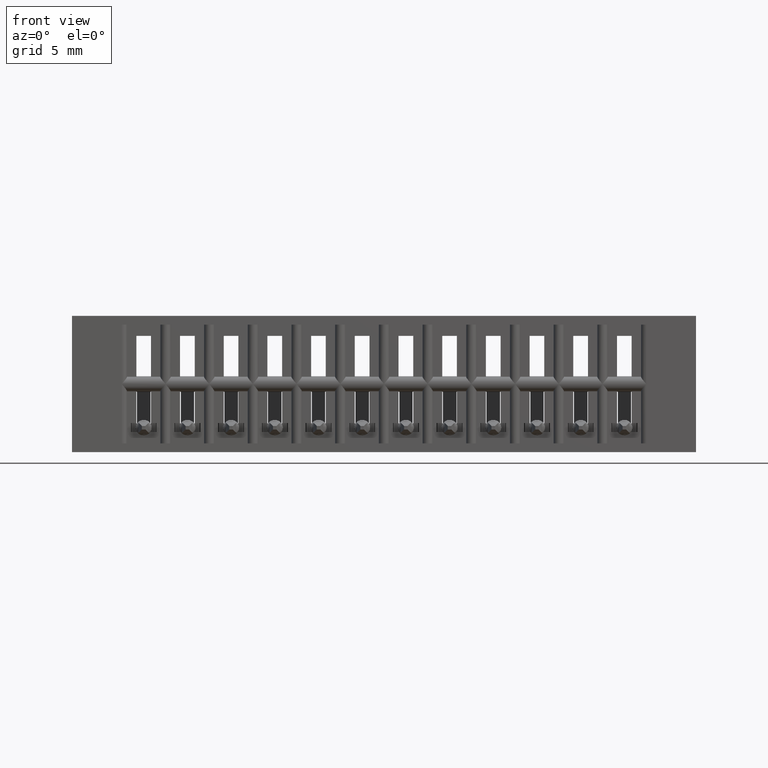
[diagram: clean part render]
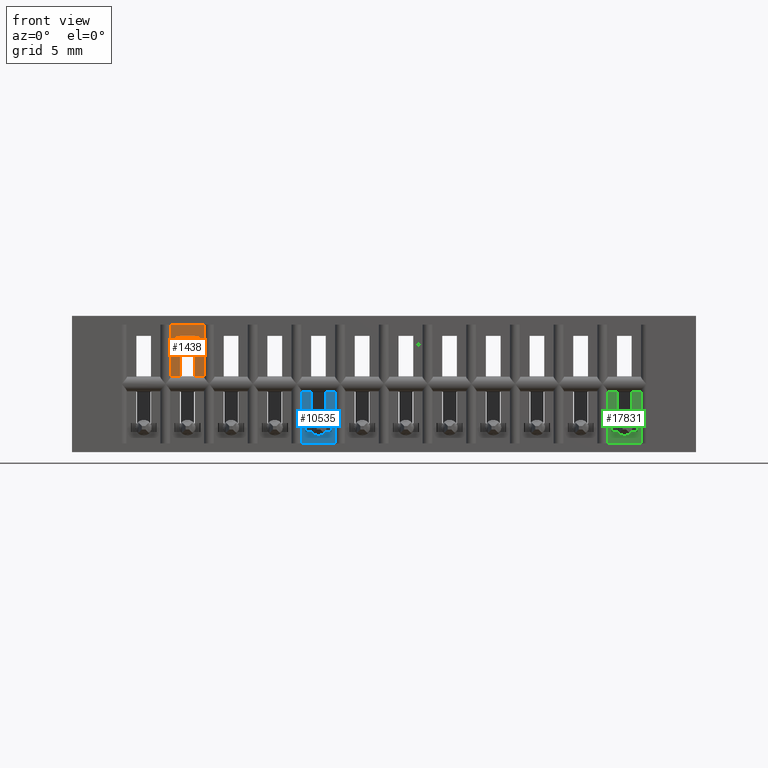
[diagram: same view with three faces highlighted in distinct colors, each labeled with its STEP entity id]
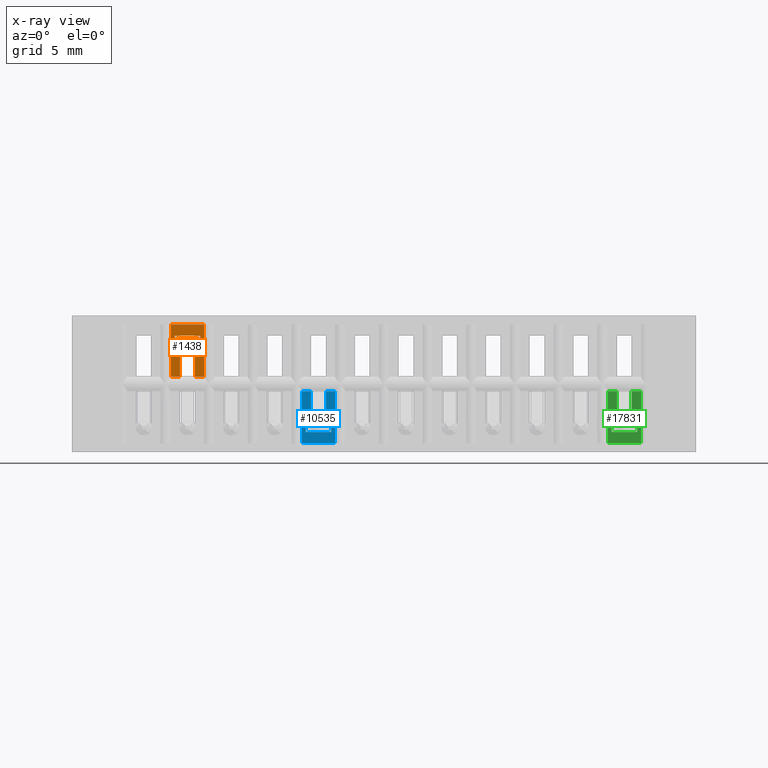
[diagram: x-ray of the same camera — body ghosted, the three highlighted faces saturated]
A machine part, front view with three faces highlighted in distinct colors.
The next image is the same camera in x-ray (body ghosted, the three faces saturated) — at least one of them is partly hidden behind the body in this view.
Their STEP definitions:

[orange] entity #1438 — the highlighted planar face has unit normal (0, 1, 0).
#126 = CARTESIAN_POINT ( 'NONE',  ( 0.3669999999999997153, 0.01499999999999979475, -1.163771384098140660E-16 ) ) ;
#173 = VECTOR ( 'NONE', #12512, 39.37007874015748143 ) ;
#532 = FACE_OUTER_BOUND ( 'NONE', #18680, .T. ) ;
#624 = EDGE_CURVE ( 'NONE', #2834, #18183, #15711, .T. ) ;
#926 = CARTESIAN_POINT ( 'NONE',  ( 19685.03937007874265, 0.01499999999999987801, -0.1741433463899272616 ) ) ;
#972 = EDGE_CURVE ( 'NONE', #15803, #22054, #4694, .T. ) ;
#1096 = VECTOR ( 'NONE', #2994, 39.37007874015748143 ) ;
#1152 = VERTEX_POINT ( 'NONE', #9749 ) ;
#1438 = ADVANCED_FACE ( 'NONE', ( #532 ), #2474, .F. ) ;
#1648 = CARTESIAN_POINT ( 'NONE',  ( -19685.03937007874265, 0.01499999999999987801, -0.1741433463808433890 ) ) ;
#1768 = VERTEX_POINT ( 'NONE', #10396 ) ;
#1852 = DIRECTION ( 'NONE',  ( 1.000000000000000000, -0.0000000000000000000, -2.307304048702925122E-16 ) ) ;
#2049 = VECTOR ( 'NONE', #10351, 39.37007874015748143 ) ;
#2474 = PLANE ( 'NONE',  #8135 ) ;
#2481 = CARTESIAN_POINT ( 'NONE',  ( 0.3669999999999996043, 0.01499999999999982250, -0.08249999999999996225 ) ) ;
#2517 = EDGE_CURVE ( 'NONE', #20039, #7253, #12279, .T. ) ;
#2817 = EDGE_CURVE ( 'NONE', #19077, #6849, #8910, .T. ) ;
#2834 = VERTEX_POINT ( 'NONE', #6983 ) ;
#2975 = DIRECTION ( 'NONE',  ( 1.000000000000000000, 0.0000000000000000000, -2.307304048702925122E-16 ) ) ;
#2994 = DIRECTION ( 'NONE',  ( -0.0000000000000000000, -0.0000000000000000000, 1.000000000000000000 ) ) ;
#3054 = VECTOR ( 'NONE', #1852, 39.37007874015748143 ) ;
#3530 = EDGE_CURVE ( 'NONE', #6849, #2834, #13178, .T. ) ;
#3654 = DIRECTION ( 'NONE',  ( 2.385081683068867604E-16, 0.0000000000000000000, 1.000000000000000000 ) ) ;
#3930 = DIRECTION ( 'NONE',  ( -0.0000000000000000000, -0.0000000000000000000, 1.000000000000000000 ) ) ;
#4058 = DIRECTION ( 'NONE',  ( 0.0000000000000000000, -4.596859604723521792E-16, 1.000000000000000000 ) ) ;
#4694 = LINE ( 'NONE', #11626, #1096 ) ;
#4941 = ORIENTED_EDGE ( 'NONE', *, *, #624, .T. ) ;
#5269 = VECTOR ( 'NONE', #16732, 39.37007874015748143 ) ;
#5344 = VECTOR ( 'NONE', #21813, 39.37007874015748143 ) ;
#5648 = DIRECTION ( 'NONE',  ( 1.060635277729750645E-31, 1.000000000000000000, 4.596859604723521792E-16 ) ) ;
#6849 = VERTEX_POINT ( 'NONE', #15428 ) ;
#6983 = CARTESIAN_POINT ( 'NONE',  ( 0.3774999999999997247, 0.01499999999999997516, -0.1741433463853853947 ) ) ;
#7072 = EDGE_CURVE ( 'NONE', #1768, #1152, #19569, .T. ) ;
#7253 = VERTEX_POINT ( 'NONE', #8236 ) ;
#7994 = ORIENTED_EDGE ( 'NONE', *, *, #7072, .F. ) ;
#8135 = AXIS2_PLACEMENT_3D ( 'NONE', #15859, #5648, #4058 ) ;
#8158 = VERTEX_POINT ( 'NONE', #22225 ) ;
#8236 = CARTESIAN_POINT ( 'NONE',  ( 0.3089999999999997193, 0.01499999999999997169, -0.08249999999999997613 ) ) ;
#8580 = CARTESIAN_POINT ( 'NONE',  ( 0.3774999999999996692, 0.01499999999999997169, -0.02500000000000000486 ) ) ;
#8735 = CARTESIAN_POINT ( 'NONE',  ( 0.3089999999999997193, 0.01499999999999997169, -4.404883600063556642E-17 ) ) ;
#8876 = VERTEX_POINT ( 'NONE', #2481 ) ;
#8910 = LINE ( 'NONE', #21860, #19243 ) ;
#8974 = LINE ( 'NONE', #126, #13234 ) ;
#8990 = CARTESIAN_POINT ( 'NONE',  ( 0.3089999999999997193, 0.01499999999999983291, -0.08249999999999996225 ) ) ;
#9478 = VECTOR ( 'NONE', #3930, 39.37007874015748143 ) ;
#9550 = EDGE_CURVE ( 'NONE', #8876, #8158, #8974, .T. ) ;
#9749 = CARTESIAN_POINT ( 'NONE',  ( 0.2929999999999995941, 0.01499999999999982250, -0.08249999999999996225 ) ) ;
#9891 = CARTESIAN_POINT ( 'NONE',  ( 0.3089999999995447499, 0.01499999999999997169, -0.1741433463853853669 ) ) ;
#10025 = CARTESIAN_POINT ( 'NONE',  ( 0.3089999999999997193, 0.01499999999999999424, -0.02500000000000003608 ) ) ;
#10051 = LINE ( 'NONE', #1648, #10085 ) ;
#10085 = VECTOR ( 'NONE', #18779, 39.37007874015748143 ) ;
#10201 = VECTOR ( 'NONE', #3654, 39.37007874015748143 ) ;
#10339 = DIRECTION ( 'NONE',  ( 1.365923996832131609E-15, -4.596859604723521792E-16, 1.000000000000000000 ) ) ;
#10348 = ORIENTED_EDGE ( 'NONE', *, *, #17260, .F. ) ;
#10351 = DIRECTION ( 'NONE',  ( -1.000000000000000000, -6.287160262869416356E-33, 2.444074818391192251E-16 ) ) ;
#10396 = CARTESIAN_POINT ( 'NONE',  ( 0.2929999999999995941, 0.01499999999999982250, -0.05749999999999997474 ) ) ;
#11620 = ORIENTED_EDGE ( 'NONE', *, *, #15625, .F. ) ;
#11626 = CARTESIAN_POINT ( 'NONE',  ( 0.2824999999999996958, 0.01499999999999997169, -0.3900000000000000133 ) ) ;
#11637 = CARTESIAN_POINT ( 'NONE',  ( 0.3089999999999997193, 0.01499999999999991444, -0.05750000000000015515 ) ) ;
#12279 = LINE ( 'NONE', #8735, #10201 ) ;
#12319 = ORIENTED_EDGE ( 'NONE', *, *, #2517, .T. ) ;
#12338 = ORIENTED_EDGE ( 'NONE', *, *, #3530, .T. ) ;
#12421 = CARTESIAN_POINT ( 'NONE',  ( 0.2824999999999996958, 0.01499999999999997169, -0.1741433463853853669 ) ) ;
#12512 = DIRECTION ( 'NONE',  ( 1.000000000000000000, -6.287160262869394461E-33, -2.170533279014657500E-16 ) ) ;
#12761 = VECTOR ( 'NONE', #2975, 39.37007874015748143 ) ;
#13178 = LINE ( 'NONE', #926, #12761 ) ;
#13234 = VECTOR ( 'NONE', #10339, 39.37007874015748143 ) ;
#13344 = CARTESIAN_POINT ( 'NONE',  ( 0.2929999999999995941, 0.01499999999999979475, -5.162495758701524272E-17 ) ) ;
#13911 = ORIENTED_EDGE ( 'NONE', *, *, #2817, .T. ) ;
#14400 = CARTESIAN_POINT ( 'NONE',  ( 0.3509999999999995901, 0.01499999999999982250, -0.08249999999999996225 ) ) ;
#14553 = EDGE_CURVE ( 'NONE', #1768, #8158, #20129, .T. ) ;
#15120 = LINE ( 'NONE', #18625, #2049 ) ;
#15428 = CARTESIAN_POINT ( 'NONE',  ( 0.3509999999999995901, 0.01499999999999997169, -0.1741433463853853947 ) ) ;
#15466 = LINE ( 'NONE', #10025, #3054 ) ;
#15625 = EDGE_CURVE ( 'NONE', #20039, #15803, #10051, .T. ) ;
#15711 = LINE ( 'NONE', #17409, #9478 ) ;
#15741 = ORIENTED_EDGE ( 'NONE', *, *, #21091, .T. ) ;
#15788 = ORIENTED_EDGE ( 'NONE', *, *, #972, .F. ) ;
#15803 = VERTEX_POINT ( 'NONE', #12421 ) ;
#15859 = CARTESIAN_POINT ( 'NONE',  ( 0.3089999999999997193, 0.01499999999999979475, -3.715354659355037839E-17 ) ) ;
#16661 = CARTESIAN_POINT ( 'NONE',  ( 0.2824999999999996958, 0.01499999999999997169, -0.02500000000000000486 ) ) ;
#16732 = DIRECTION ( 'NONE',  ( 9.044631870915464862E-16, 4.596859604723521792E-16, -1.000000000000000000 ) ) ;
#17260 = EDGE_CURVE ( 'NONE', #22054, #18183, #15466, .T. ) ;
#17309 = DIRECTION ( 'NONE',  ( -2.385081683068867604E-16, 0.0000000000000000000, -1.000000000000000000 ) ) ;
#17409 = CARTESIAN_POINT ( 'NONE',  ( 0.3774999999999996692, 0.01499999999999997169, -0.3900000000000000133 ) ) ;
#17481 = EDGE_CURVE ( 'NONE', #1152, #7253, #17485, .T. ) ;
#17485 = LINE ( 'NONE', #8990, #173 ) ;
#17565 = ORIENTED_EDGE ( 'NONE', *, *, #17481, .F. ) ;
#18183 = VERTEX_POINT ( 'NONE', #8580 ) ;
#18625 = CARTESIAN_POINT ( 'NONE',  ( 0.3089999999999997193, 0.01499999999999983291, -0.08249999999999993450 ) ) ;
#18680 = EDGE_LOOP ( 'NONE', ( #15788, #11620, #12319, #17565, #7994, #21985, #18683, #15741, #13911, #12338, #4941, #10348 ) ) ;
#18683 = ORIENTED_EDGE ( 'NONE', *, *, #9550, .F. ) ;
#18779 = DIRECTION ( 'NONE',  ( -1.000000000000000000, -0.0000000000000000000, 2.307304048702924629E-16 ) ) ;
#19077 = VERTEX_POINT ( 'NONE', #14400 ) ;
#19243 = VECTOR ( 'NONE', #17309, 39.37007874015748143 ) ;
#19569 = LINE ( 'NONE', #13344, #5269 ) ;
#20039 = VERTEX_POINT ( 'NONE', #9891 ) ;
#20129 = LINE ( 'NONE', #11637, #5344 ) ;
#21091 = EDGE_CURVE ( 'NONE', #8876, #19077, #15120, .T. ) ;
#21813 = DIRECTION ( 'NONE',  ( 1.000000000000000000, -0.0000000000000000000, -2.307304048702925122E-16 ) ) ;
#21860 = CARTESIAN_POINT ( 'NONE',  ( 0.3509999999999997011, 0.01499999999999997169, -5.373951300518784932E-17 ) ) ;
#21985 = ORIENTED_EDGE ( 'NONE', *, *, #14553, .T. ) ;
#22054 = VERTEX_POINT ( 'NONE', #16661 ) ;
#22225 = CARTESIAN_POINT ( 'NONE',  ( 0.3669999999999996598, 0.01499999999999982250, -0.05749999999999998168 ) ) ;

[blue] entity #10535 — the highlighted planar face has unit normal (0, 1, 0).
#206 = DIRECTION ( 'NONE',  ( 1.000000000000000000, 6.287160262869416356E-33, -2.444074818391192251E-16 ) ) ;
#285 = CARTESIAN_POINT ( 'NONE',  ( 0.7419999999999996598, 0.01499999999999994220, -0.3075000000000000511 ) ) ;
#424 = VERTEX_POINT ( 'NONE', #8119 ) ;
#568 = LINE ( 'NONE', #4316, #4950 ) ;
#875 = CARTESIAN_POINT ( 'NONE',  ( 0.6839999999994050839, 0.01499999999999997169, -0.2158566536146137582 ) ) ;
#966 = ORIENTED_EDGE ( 'NONE', *, *, #15163, .T. ) ;
#1073 = DIRECTION ( 'NONE',  ( -0.0000000000000000000, -0.0000000000000000000, 1.000000000000000000 ) ) ;
#1211 = ORIENTED_EDGE ( 'NONE', *, *, #7150, .T. ) ;
#1307 = EDGE_CURVE ( 'NONE', #8952, #19718, #8813, .T. ) ;
#1355 = ORIENTED_EDGE ( 'NONE', *, *, #17317, .T. ) ;
#1715 = VECTOR ( 'NONE', #11283, 39.37007874015748143 ) ;
#2028 = CARTESIAN_POINT ( 'NONE',  ( 0.7524999999999997247, 0.01499999999999997169, -0.3900000000000000133 ) ) ;
#2201 = VERTEX_POINT ( 'NONE', #5583 ) ;
#2793 = LINE ( 'NONE', #21600, #20860 ) ;
#2820 = CARTESIAN_POINT ( 'NONE',  ( 0.6839999999999997193, 0.01499999999999997169, -4.404883600063556642E-17 ) ) ;
#3190 = VERTEX_POINT ( 'NONE', #13660 ) ;
#3320 = DIRECTION ( 'NONE',  ( -2.385081683068867604E-16, 0.0000000000000000000, -1.000000000000000000 ) ) ;
#3951 = VECTOR ( 'NONE', #13163, 39.37007874015748143 ) ;
#4316 = CARTESIAN_POINT ( 'NONE',  ( -19685.03937007874265, 0.01499999999999989536, -0.2158566536100716138 ) ) ;
#4705 = PLANE ( 'NONE',  #9986 ) ;
#4796 = LINE ( 'NONE', #17276, #19341 ) ;
#4950 = VECTOR ( 'NONE', #17901, 39.37007874015748143 ) ;
#5417 = EDGE_CURVE ( 'NONE', #21425, #424, #15752, .T. ) ;
#5515 = CARTESIAN_POINT ( 'NONE',  ( 0.6839999999999997193, 0.01499999999999993526, -0.3075000000000000511 ) ) ;
#5583 = CARTESIAN_POINT ( 'NONE',  ( 0.6574999999999997513, 0.01499999999999997169, -0.2158566536146137305 ) ) ;
#5865 = LINE ( 'NONE', #2820, #14054 ) ;
#6013 = ORIENTED_EDGE ( 'NONE', *, *, #15367, .T. ) ;
#6347 = CARTESIAN_POINT ( 'NONE',  ( 0.6679999999999995941, 0.01499999999999994220, -0.3075000000000000511 ) ) ;
#6428 = DIRECTION ( 'NONE',  ( -1.000000000000000000, -0.0000000000000000000, 2.307304048702924629E-16 ) ) ;
#6691 = CARTESIAN_POINT ( 'NONE',  ( 0.6839999999999996083, 0.01499999999999994914, -0.3325000000000000178 ) ) ;
#7150 = EDGE_CURVE ( 'NONE', #14033, #8341, #9812, .T. ) ;
#7763 = DIRECTION ( 'NONE',  ( 0.0000000000000000000, -4.596859604723521792E-16, 1.000000000000000000 ) ) ;
#7886 = ORIENTED_EDGE ( 'NONE', *, *, #8447, .F. ) ;
#8119 = CARTESIAN_POINT ( 'NONE',  ( 0.7419999999999996598, 0.01499999999999994914, -0.3325000000000000178 ) ) ;
#8341 = VERTEX_POINT ( 'NONE', #18833 ) ;
#8447 = EDGE_CURVE ( 'NONE', #2201, #10194, #568, .T. ) ;
#8704 = VERTEX_POINT ( 'NONE', #6347 ) ;
#8813 = LINE ( 'NONE', #20502, #9316 ) ;
#8826 = DIRECTION ( 'NONE',  ( 1.000000000000000000, -0.0000000000000000000, -2.307304048702925122E-16 ) ) ;
#8952 = VERTEX_POINT ( 'NONE', #16188 ) ;
#9316 = VECTOR ( 'NONE', #206, 39.37007874015748143 ) ;
#9812 = LINE ( 'NONE', #19793, #11811 ) ;
#9986 = AXIS2_PLACEMENT_3D ( 'NONE', #21713, #18075, #7763 ) ;
#10194 = VERTEX_POINT ( 'NONE', #875 ) ;
#10317 = VERTEX_POINT ( 'NONE', #12107 ) ;
#10535 = ADVANCED_FACE ( 'NONE', ( #13213 ), #4705, .F. ) ;
#10580 = EDGE_CURVE ( 'NONE', #3190, #2201, #2793, .T. ) ;
#10685 = CARTESIAN_POINT ( 'NONE',  ( 0.7259999999999997566, 0.01499999999999997169, -5.373951300518784932E-17 ) ) ;
#10772 = LINE ( 'NONE', #2028, #18752 ) ;
#11283 = DIRECTION ( 'NONE',  ( 1.000000000000000000, -0.0000000000000000000, -2.307304048702925122E-16 ) ) ;
#11726 = DIRECTION ( 'NONE',  ( -0.0000000000000000000, 4.596859604723521792E-16, -1.000000000000000000 ) ) ;
#11786 = ORIENTED_EDGE ( 'NONE', *, *, #1307, .T. ) ;
#11811 = VECTOR ( 'NONE', #6428, 39.37007874015748143 ) ;
#12012 = EDGE_LOOP ( 'NONE', ( #18825, #1211, #966, #11786, #1355, #20194, #6013, #16045, #20991, #7886, #21166, #14483 ) ) ;
#12107 = CARTESIAN_POINT ( 'NONE',  ( 0.7524999999999997247, 0.01499999999999997169, -0.3649999999999999911 ) ) ;
#12448 = DIRECTION ( 'NONE',  ( -1.000000000000000000, 6.287160262869394461E-33, 2.170533279014657500E-16 ) ) ;
#12773 = LINE ( 'NONE', #5515, #20851 ) ;
#12806 = EDGE_CURVE ( 'NONE', #10317, #14033, #10772, .T. ) ;
#12911 = EDGE_CURVE ( 'NONE', #18050, #10194, #5865, .T. ) ;
#13023 = DIRECTION ( 'NONE',  ( 2.385081683068867604E-16, 0.0000000000000000000, 1.000000000000000000 ) ) ;
#13163 = DIRECTION ( 'NONE',  ( 4.614608097405849258E-16, -4.596859604723521792E-16, 1.000000000000000000 ) ) ;
#13213 = FACE_OUTER_BOUND ( 'NONE', #12012, .T. ) ;
#13660 = CARTESIAN_POINT ( 'NONE',  ( 0.6574999999999997513, 0.01499999999999997169, -0.3649999999999999911 ) ) ;
#14033 = VERTEX_POINT ( 'NONE', #14593 ) ;
#14054 = VECTOR ( 'NONE', #13023, 39.37007874015748143 ) ;
#14483 = ORIENTED_EDGE ( 'NONE', *, *, #22210, .T. ) ;
#14593 = CARTESIAN_POINT ( 'NONE',  ( 0.7524999999999997247, 0.01499999999999997169, -0.2158566536146137582 ) ) ;
#14968 = LINE ( 'NONE', #19956, #3951 ) ;
#15163 = EDGE_CURVE ( 'NONE', #8341, #8952, #18843, .T. ) ;
#15367 = EDGE_CURVE ( 'NONE', #21425, #8704, #14968, .T. ) ;
#15752 = LINE ( 'NONE', #6691, #18235 ) ;
#15863 = DIRECTION ( 'NONE',  ( -0.0000000000000000000, -0.0000000000000000000, 1.000000000000000000 ) ) ;
#16045 = ORIENTED_EDGE ( 'NONE', *, *, #19275, .F. ) ;
#16188 = CARTESIAN_POINT ( 'NONE',  ( 0.7259999999999995346, 0.01499999999999994220, -0.3075000000000000511 ) ) ;
#17276 = CARTESIAN_POINT ( 'NONE',  ( 0.7419999999999996598, 0.01499999999999979475, -3.715354659355037839E-17 ) ) ;
#17317 = EDGE_CURVE ( 'NONE', #19718, #424, #4796, .T. ) ;
#17901 = DIRECTION ( 'NONE',  ( 1.000000000000000000, 0.0000000000000000000, -2.307304048702924629E-16 ) ) ;
#18038 = CARTESIAN_POINT ( 'NONE',  ( 0.6679999999999995941, 0.01499999999999993873, -0.3324999999999999623 ) ) ;
#18050 = VERTEX_POINT ( 'NONE', #20359 ) ;
#18075 = DIRECTION ( 'NONE',  ( 1.060635277729750645E-31, 1.000000000000000000, 4.596859604723521792E-16 ) ) ;
#18172 = CARTESIAN_POINT ( 'NONE',  ( 0.6839999999999996083, 0.01499999999999996302, -0.3649999999999999911 ) ) ;
#18235 = VECTOR ( 'NONE', #8826, 39.37007874015748143 ) ;
#18752 = VECTOR ( 'NONE', #15863, 39.37007874015748143 ) ;
#18825 = ORIENTED_EDGE ( 'NONE', *, *, #12806, .T. ) ;
#18833 = CARTESIAN_POINT ( 'NONE',  ( 0.7259999999999997566, 0.01499999999999997169, -0.2158566536146137582 ) ) ;
#18843 = LINE ( 'NONE', #10685, #19836 ) ;
#19275 = EDGE_CURVE ( 'NONE', #18050, #8704, #12773, .T. ) ;
#19341 = VECTOR ( 'NONE', #11726, 39.37007874015748143 ) ;
#19718 = VERTEX_POINT ( 'NONE', #285 ) ;
#19793 = CARTESIAN_POINT ( 'NONE',  ( 19685.03937007874265, 0.01499999999999989536, -0.2158566536191554863 ) ) ;
#19836 = VECTOR ( 'NONE', #3320, 39.37007874015748143 ) ;
#19956 = CARTESIAN_POINT ( 'NONE',  ( 0.6679999999999997051, 0.01499999999999979475, -2.977017363770099769E-17 ) ) ;
#20194 = ORIENTED_EDGE ( 'NONE', *, *, #5417, .F. ) ;
#20231 = LINE ( 'NONE', #18172, #1715 ) ;
#20359 = CARTESIAN_POINT ( 'NONE',  ( 0.6839999999999996083, 0.01499999999999994220, -0.3075000000000000511 ) ) ;
#20502 = CARTESIAN_POINT ( 'NONE',  ( 0.6839999999999996083, 0.01499999999999993526, -0.3074999999999999956 ) ) ;
#20851 = VECTOR ( 'NONE', #12448, 39.37007874015748143 ) ;
#20860 = VECTOR ( 'NONE', #1073, 39.37007874015748143 ) ;
#20991 = ORIENTED_EDGE ( 'NONE', *, *, #12911, .T. ) ;
#21166 = ORIENTED_EDGE ( 'NONE', *, *, #10580, .F. ) ;
#21425 = VERTEX_POINT ( 'NONE', #18038 ) ;
#21600 = CARTESIAN_POINT ( 'NONE',  ( 0.6574999999999997513, 0.01499999999999997169, -0.3900000000000000133 ) ) ;
#21713 = CARTESIAN_POINT ( 'NONE',  ( 0.6839999999999997193, 0.01499999999999979475, -3.715354659355037839E-17 ) ) ;
#22210 = EDGE_CURVE ( 'NONE', #3190, #10317, #20231, .T. ) ;

[green] entity #17831 — the highlighted planar face has unit normal (0, 1, 0).
#21 = VERTEX_POINT ( 'NONE', #448 ) ;
#256 = VECTOR ( 'NONE', #7676, 39.37007874015748143 ) ;
#448 = CARTESIAN_POINT ( 'NONE',  ( 1.542999999999999705, 0.01499999999999993873, -0.3324999999999999623 ) ) ;
#541 = LINE ( 'NONE', #757, #256 ) ;
#757 = CARTESIAN_POINT ( 'NONE',  ( 1.558999999999999719, 0.01499999999999993526, -0.3075000000000000511 ) ) ;
#774 = CARTESIAN_POINT ( 'NONE',  ( 1.558999999999999719, 0.01499999999999993526, -0.3074999999999999956 ) ) ;
#1123 = LINE ( 'NONE', #8039, #2392 ) ;
#1601 = DIRECTION ( 'NONE',  ( -0.0000000000000000000, 4.596859604723521792E-16, -1.000000000000000000 ) ) ;
#2078 = LINE ( 'NONE', #9199, #13138 ) ;
#2095 = CARTESIAN_POINT ( 'NONE',  ( 1.532499999999999529, 0.01499999999999997169, -0.2158566536146137305 ) ) ;
#2207 = EDGE_CURVE ( 'NONE', #8126, #21280, #2078, .T. ) ;
#2392 = VECTOR ( 'NONE', #12936, 39.37007874015748143 ) ;
#2490 = DIRECTION ( 'NONE',  ( -0.0000000000000000000, -0.0000000000000000000, 1.000000000000000000 ) ) ;
#2646 = LINE ( 'NONE', #14542, #17947 ) ;
#2879 = LINE ( 'NONE', #21903, #18762 ) ;
#2899 = CARTESIAN_POINT ( 'NONE',  ( 1.616999999999999771, 0.01499999999999994220, -0.3075000000000000511 ) ) ;
#3129 = VERTEX_POINT ( 'NONE', #6179 ) ;
#4153 = AXIS2_PLACEMENT_3D ( 'NONE', #8840, #21503, #4285 ) ;
#4199 = CARTESIAN_POINT ( 'NONE',  ( 1.532499999999999529, 0.01499999999999997169, -0.3649999999999999911 ) ) ;
#4285 = DIRECTION ( 'NONE',  ( 0.0000000000000000000, -4.596859604723521792E-16, 1.000000000000000000 ) ) ;
#5146 = EDGE_LOOP ( 'NONE', ( #17367, #11950, #12685, #13170, #18579, #12391, #21743, #11393, #14561, #7632, #16044, #15961 ) ) ;
#5230 = LINE ( 'NONE', #5354, #16596 ) ;
#5354 = CARTESIAN_POINT ( 'NONE',  ( 1.616999999999999771, 0.01499999999999979475, -3.715354659355037839E-17 ) ) ;
#5453 = CARTESIAN_POINT ( 'NONE',  ( 1.627499999999999503, 0.01499999999999997169, -0.3649999999999999911 ) ) ;
#5479 = EDGE_CURVE ( 'NONE', #12288, #22176, #5776, .T. ) ;
#5756 = VERTEX_POINT ( 'NONE', #20607 ) ;
#5776 = LINE ( 'NONE', #17675, #6677 ) ;
#5940 = VECTOR ( 'NONE', #16595, 39.37007874015748143 ) ;
#6019 = CARTESIAN_POINT ( 'NONE',  ( 1.600999999999999757, 0.01499999999999997169, -0.2158566536146137582 ) ) ;
#6179 = CARTESIAN_POINT ( 'NONE',  ( 1.616999999999999771, 0.01499999999999994914, -0.3325000000000000178 ) ) ;
#6272 = VERTEX_POINT ( 'NONE', #2095 ) ;
#6677 = VECTOR ( 'NONE', #2490, 39.37007874015748143 ) ;
#6679 = VERTEX_POINT ( 'NONE', #6019 ) ;
#6811 = VECTOR ( 'NONE', #21068, 39.37007874015748143 ) ;
#7238 = LINE ( 'NONE', #14145, #6811 ) ;
#7629 = EDGE_CURVE ( 'NONE', #19185, #12288, #2646, .T. ) ;
#7632 = ORIENTED_EDGE ( 'NONE', *, *, #19244, .F. ) ;
#7676 = DIRECTION ( 'NONE',  ( -1.000000000000000000, 6.287160262869394461E-33, 2.170533279014657500E-16 ) ) ;
#7787 = PLANE ( 'NONE',  #4153 ) ;
#7928 = DIRECTION ( 'NONE',  ( 1.000000000000000000, 6.287160262869416356E-33, -2.444074818391192251E-16 ) ) ;
#8039 = CARTESIAN_POINT ( 'NONE',  ( -19685.03937007874265, 0.01499999999999989536, -0.2158566536100714195 ) ) ;
#8126 = VERTEX_POINT ( 'NONE', #16241 ) ;
#8186 = VECTOR ( 'NONE', #13044, 39.37007874015748143 ) ;
#8840 = CARTESIAN_POINT ( 'NONE',  ( 1.558999999999999719, 0.01499999999999979475, -3.715354659355037839E-17 ) ) ;
#8914 = EDGE_CURVE ( 'NONE', #8126, #19312, #541, .T. ) ;
#9199 = CARTESIAN_POINT ( 'NONE',  ( 1.558999999999999719, 0.01499999999999997169, -4.404883600063556642E-17 ) ) ;
#9376 = EDGE_CURVE ( 'NONE', #22176, #6679, #9672, .T. ) ;
#9672 = LINE ( 'NONE', #18153, #5940 ) ;
#10011 = LINE ( 'NONE', #16813, #20832 ) ;
#11393 = ORIENTED_EDGE ( 'NONE', *, *, #8914, .F. ) ;
#11950 = ORIENTED_EDGE ( 'NONE', *, *, #9376, .T. ) ;
#12288 = VERTEX_POINT ( 'NONE', #5453 ) ;
#12391 = ORIENTED_EDGE ( 'NONE', *, *, #19992, .F. ) ;
#12685 = ORIENTED_EDGE ( 'NONE', *, *, #15043, .T. ) ;
#12826 = EDGE_CURVE ( 'NONE', #21, #19312, #7238, .T. ) ;
#12936 = DIRECTION ( 'NONE',  ( 1.000000000000000000, 0.0000000000000000000, -2.307304048702924136E-16 ) ) ;
#13044 = DIRECTION ( 'NONE',  ( -0.0000000000000000000, -0.0000000000000000000, 1.000000000000000000 ) ) ;
#13138 = VECTOR ( 'NONE', #21333, 39.37007874015748143 ) ;
#13170 = ORIENTED_EDGE ( 'NONE', *, *, #21829, .T. ) ;
#13307 = DIRECTION ( 'NONE',  ( -2.385081683068867604E-16, 0.0000000000000000000, -1.000000000000000000 ) ) ;
#13526 = VERTEX_POINT ( 'NONE', #2899 ) ;
#14145 = CARTESIAN_POINT ( 'NONE',  ( 1.542999999999999927, 0.01499999999999979475, -2.977017363770106548E-17 ) ) ;
#14361 = CARTESIAN_POINT ( 'NONE',  ( 1.542999999999999705, 0.01499999999999994220, -0.3075000000000000511 ) ) ;
#14542 = CARTESIAN_POINT ( 'NONE',  ( 1.558999999999999719, 0.01499999999999996302, -0.3649999999999999911 ) ) ;
#14561 = ORIENTED_EDGE ( 'NONE', *, *, #2207, .T. ) ;
#15043 = EDGE_CURVE ( 'NONE', #6679, #5756, #2879, .T. ) ;
#15134 = EDGE_CURVE ( 'NONE', #13526, #3129, #5230, .T. ) ;
#15677 = CARTESIAN_POINT ( 'NONE',  ( 1.558999999999079344, 0.01499999999999997169, -0.2158566536146137582 ) ) ;
#15961 = ORIENTED_EDGE ( 'NONE', *, *, #7629, .T. ) ;
#16044 = ORIENTED_EDGE ( 'NONE', *, *, #19161, .F. ) ;
#16241 = CARTESIAN_POINT ( 'NONE',  ( 1.558999999999999719, 0.01499999999999994220, -0.3075000000000000511 ) ) ;
#16317 = LINE ( 'NONE', #18361, #8186 ) ;
#16595 = DIRECTION ( 'NONE',  ( -1.000000000000000000, -0.0000000000000000000, 2.307304048702924629E-16 ) ) ;
#16596 = VECTOR ( 'NONE', #1601, 39.37007874015748143 ) ;
#16813 = CARTESIAN_POINT ( 'NONE',  ( 1.558999999999999719, 0.01499999999999994914, -0.3325000000000000178 ) ) ;
#16933 = DIRECTION ( 'NONE',  ( 1.000000000000000000, -0.0000000000000000000, -2.307304048702925122E-16 ) ) ;
#17367 = ORIENTED_EDGE ( 'NONE', *, *, #5479, .T. ) ;
#17675 = CARTESIAN_POINT ( 'NONE',  ( 1.627499999999999503, 0.01499999999999997169, -0.3900000000000000133 ) ) ;
#17831 = ADVANCED_FACE ( 'NONE', ( #19805 ), #7787, .F. ) ;
#17947 = VECTOR ( 'NONE', #21456, 39.37007874015748143 ) ;
#18153 = CARTESIAN_POINT ( 'NONE',  ( 19685.03937007874265, 0.01499999999999989536, -0.2158566536191552920 ) ) ;
#18361 = CARTESIAN_POINT ( 'NONE',  ( 1.532499999999999529, 0.01499999999999997169, -0.3900000000000000133 ) ) ;
#18579 = ORIENTED_EDGE ( 'NONE', *, *, #15134, .T. ) ;
#18762 = VECTOR ( 'NONE', #13307, 39.37007874015748143 ) ;
#19161 = EDGE_CURVE ( 'NONE', #19185, #6272, #16317, .T. ) ;
#19185 = VERTEX_POINT ( 'NONE', #4199 ) ;
#19244 = EDGE_CURVE ( 'NONE', #6272, #21280, #1123, .T. ) ;
#19312 = VERTEX_POINT ( 'NONE', #14361 ) ;
#19796 = VECTOR ( 'NONE', #7928, 39.37007874015748143 ) ;
#19805 = FACE_OUTER_BOUND ( 'NONE', #5146, .T. ) ;
#19992 = EDGE_CURVE ( 'NONE', #21, #3129, #10011, .T. ) ;
#20607 = CARTESIAN_POINT ( 'NONE',  ( 1.600999999999999757, 0.01499999999999994220, -0.3075000000000000511 ) ) ;
#20832 = VECTOR ( 'NONE', #16933, 39.37007874015748143 ) ;
#21068 = DIRECTION ( 'NONE',  ( 4.614608097405849258E-16, -4.596859604723521792E-16, 1.000000000000000000 ) ) ;
#21138 = CARTESIAN_POINT ( 'NONE',  ( 1.627499999999999503, 0.01499999999999997169, -0.2158566536146137582 ) ) ;
#21280 = VERTEX_POINT ( 'NONE', #15677 ) ;
#21333 = DIRECTION ( 'NONE',  ( 2.385081683068867604E-16, 0.0000000000000000000, 1.000000000000000000 ) ) ;
#21456 = DIRECTION ( 'NONE',  ( 1.000000000000000000, -0.0000000000000000000, -2.307304048702925122E-16 ) ) ;
#21503 = DIRECTION ( 'NONE',  ( 1.060635277729750645E-31, 1.000000000000000000, 4.596859604723521792E-16 ) ) ;
#21743 = ORIENTED_EDGE ( 'NONE', *, *, #12826, .T. ) ;
#21746 = LINE ( 'NONE', #774, #19796 ) ;
#21829 = EDGE_CURVE ( 'NONE', #5756, #13526, #21746, .T. ) ;
#21903 = CARTESIAN_POINT ( 'NONE',  ( 1.600999999999999757, 0.01499999999999997169, -5.373951300518784932E-17 ) ) ;
#22176 = VERTEX_POINT ( 'NONE', #21138 ) ;